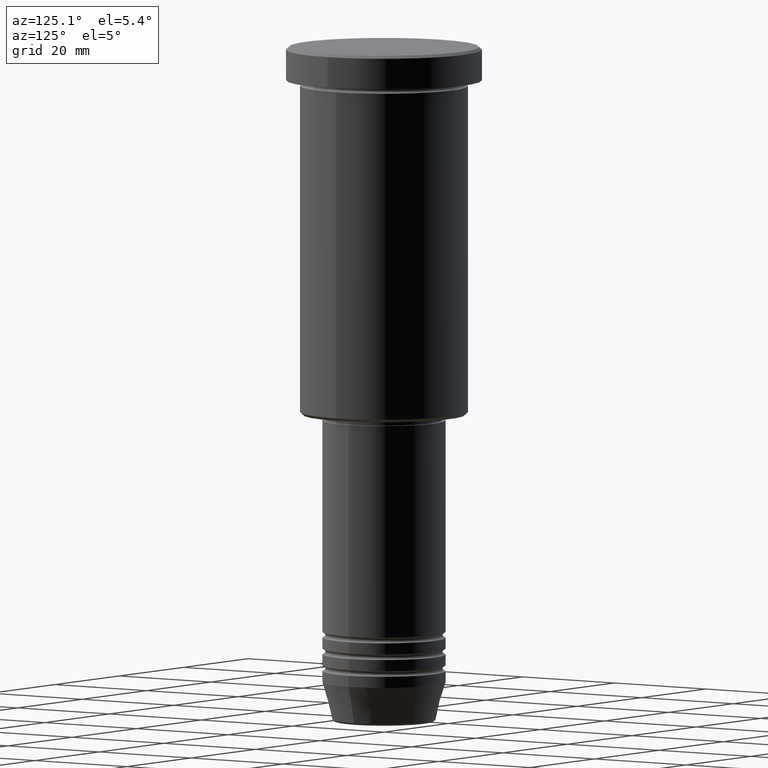
[diagram: clean part render]
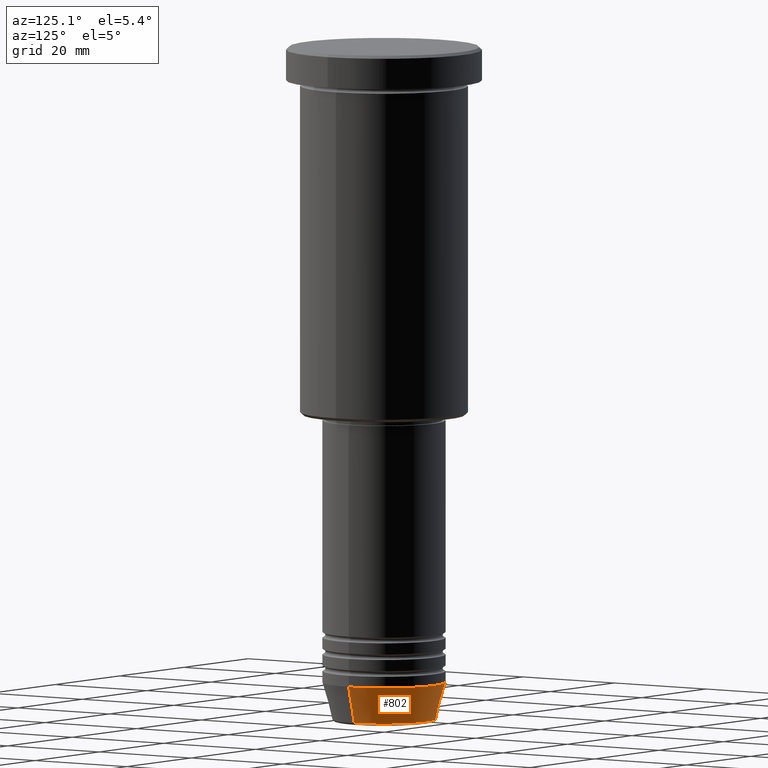
[diagram: same view with one face highlighted and labeled with its STEP entity id]
A machine part, auxiliary view. The second image highlights one B-rep face of the part: STEP entity #802.
In plain terms, the highlighted conical surface has half-angle 15 deg.
Its self-contained STEP definition (entity closure, byte-faithful):
#5 = FACE_OUTER_BOUND ( 'NONE', #1114, .T. ) ;
#16 = DIRECTION ( 'NONE',  ( 1.000000000000000000, 0.000000000000000000, 0.000000000000000000 ) ) ;
#17 = VERTEX_POINT ( 'NONE', #1023 ) ;
#18 = ORIENTED_EDGE ( 'NONE', *, *, #932, .T. ) ;
#23 = CARTESIAN_POINT ( 'NONE',  ( 0.000000000000000000, 0.000000000000000000, -120.6294095225512564 ) ) ;
#52 = EDGE_CURVE ( 'NONE', #786, #284, #808, .T. ) ;
#81 = ORIENTED_EDGE ( 'NONE', *, *, #635, .F. ) ;
#115 = CARTESIAN_POINT ( 'NONE',  ( -11.00000000000000000, 1.347111479062088405E-15, -114.0000000000000142 ) ) ;
#150 = CONICAL_SURFACE ( 'NONE', #881, 11.00000000000000000, 0.2617993877991500740 ) ;
#179 = CARTESIAN_POINT ( 'NONE',  ( 9.223655072137191269, 0.000000000000000000, -120.6294095225512564 ) ) ;
#208 = VECTOR ( 'NONE', #490, 1000.000000000000000 ) ;
#214 = DIRECTION ( 'NONE',  ( -0.000000000000000000, -0.000000000000000000, 1.000000000000000000 ) ) ;
#235 = EDGE_CURVE ( 'NONE', #242, #17, #331, .T. ) ;
#242 = VERTEX_POINT ( 'NONE', #320 ) ;
#273 = DIRECTION ( 'NONE',  ( 1.000000000000000000, 0.000000000000000000, 0.000000000000000000 ) ) ;
#284 = VERTEX_POINT ( 'NONE', #1028 ) ;
#319 = ORIENTED_EDGE ( 'NONE', *, *, #52, .T. ) ;
#320 = CARTESIAN_POINT ( 'NONE',  ( 11.00000000000000000, 0.000000000000000000, -114.0000000000000142 ) ) ;
#331 = CIRCLE ( 'NONE', #670, 11.00000000000000000 ) ;
#453 = DIRECTION ( 'NONE',  ( 1.000000000000000000, 0.000000000000000000, 0.000000000000000000 ) ) ;
#490 = DIRECTION ( 'NONE',  ( 0.2588190451025213501, 0.000000000000000000, 0.9659258262890680902 ) ) ;
#580 = LINE ( 'NONE', #941, #208 ) ;
#585 = LINE ( 'NONE', #115, #820 ) ;
#635 = EDGE_CURVE ( 'NONE', #786, #242, #580, .T. ) ;
#636 = CARTESIAN_POINT ( 'NONE',  ( 0.000000000000000000, 0.000000000000000000, -114.0000000000000142 ) ) ;
#651 = DIRECTION ( 'NONE',  ( -0.000000000000000000, -0.000000000000000000, 1.000000000000000000 ) ) ;
#670 = AXIS2_PLACEMENT_3D ( 'NONE', #1086, #651, #453 ) ;
#681 = DIRECTION ( 'NONE',  ( -0.2588190451025213501, 3.169619151431772337E-17, 0.9659258262890680902 ) ) ;
#786 = VERTEX_POINT ( 'NONE', #179 ) ;
#802 = ADVANCED_FACE ( 'NONE', ( #5 ), #150, .T. ) ;
#808 = CIRCLE ( 'NONE', #987, 9.223655072137191269 ) ;
#820 = VECTOR ( 'NONE', #681, 1000.000000000000000 ) ;
#881 = AXIS2_PLACEMENT_3D ( 'NONE', #636, #917, #273 ) ;
#917 = DIRECTION ( 'NONE',  ( -0.000000000000000000, -0.000000000000000000, 1.000000000000000000 ) ) ;
#932 = EDGE_CURVE ( 'NONE', #284, #17, #585, .T. ) ;
#941 = CARTESIAN_POINT ( 'NONE',  ( 11.00000000000000000, 0.000000000000000000, -114.0000000000000142 ) ) ;
#987 = AXIS2_PLACEMENT_3D ( 'NONE', #23, #214, #16 ) ;
#1023 = CARTESIAN_POINT ( 'NONE',  ( -11.00000000000000000, 1.347111479062088405E-15, -114.0000000000000142 ) ) ;
#1028 = CARTESIAN_POINT ( 'NONE',  ( -9.223655072137191269, 1.238341722557647202E-15, -120.6294095225512564 ) ) ;
#1083 = ORIENTED_EDGE ( 'NONE', *, *, #235, .F. ) ;
#1086 = CARTESIAN_POINT ( 'NONE',  ( 0.000000000000000000, 0.000000000000000000, -114.0000000000000142 ) ) ;
#1114 = EDGE_LOOP ( 'NONE', ( #319, #18, #1083, #81 ) ) ;